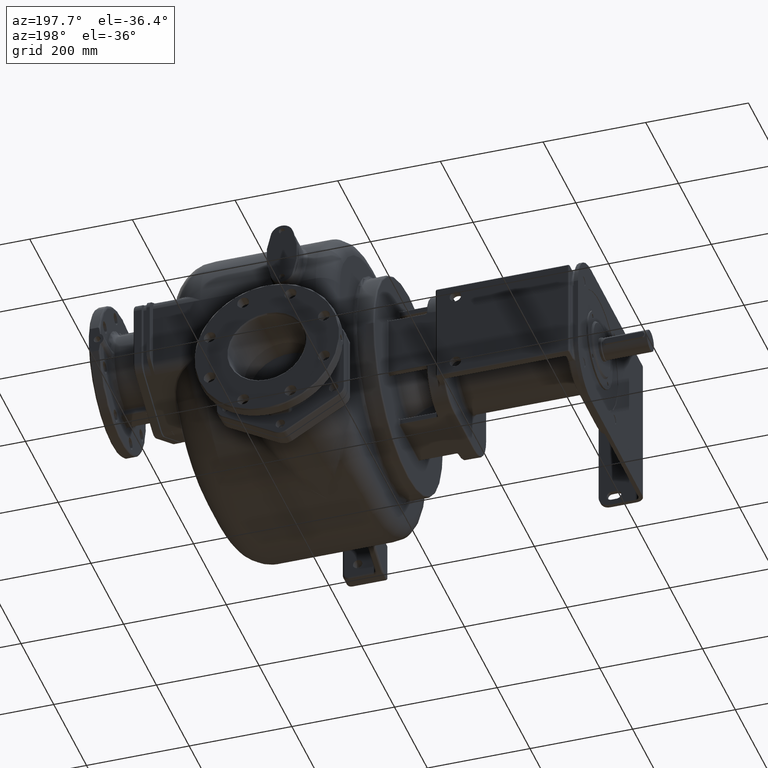
[diagram: clean part render]
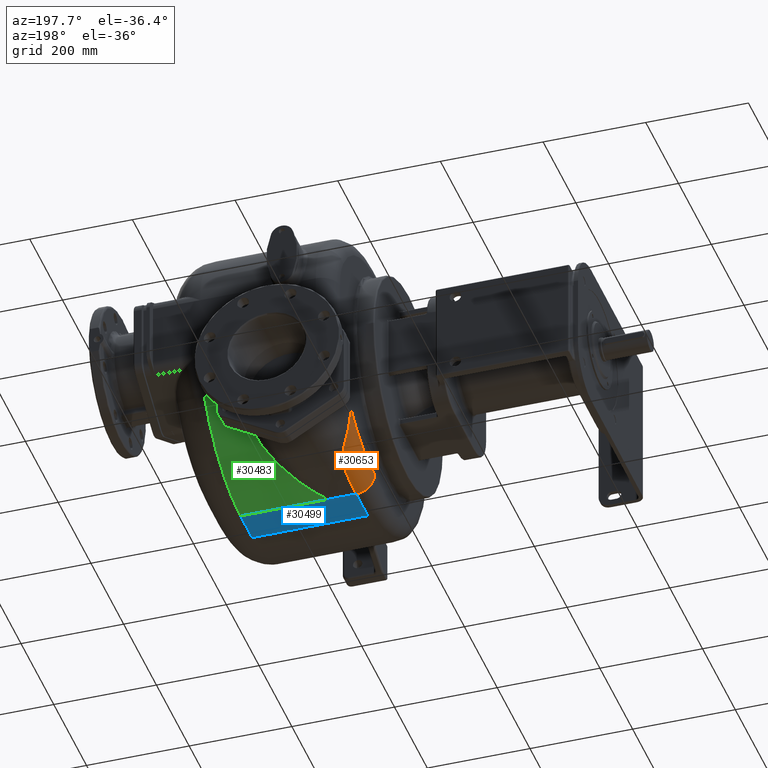
[diagram: same view with three faces highlighted in distinct colors, each labeled with its STEP entity id]
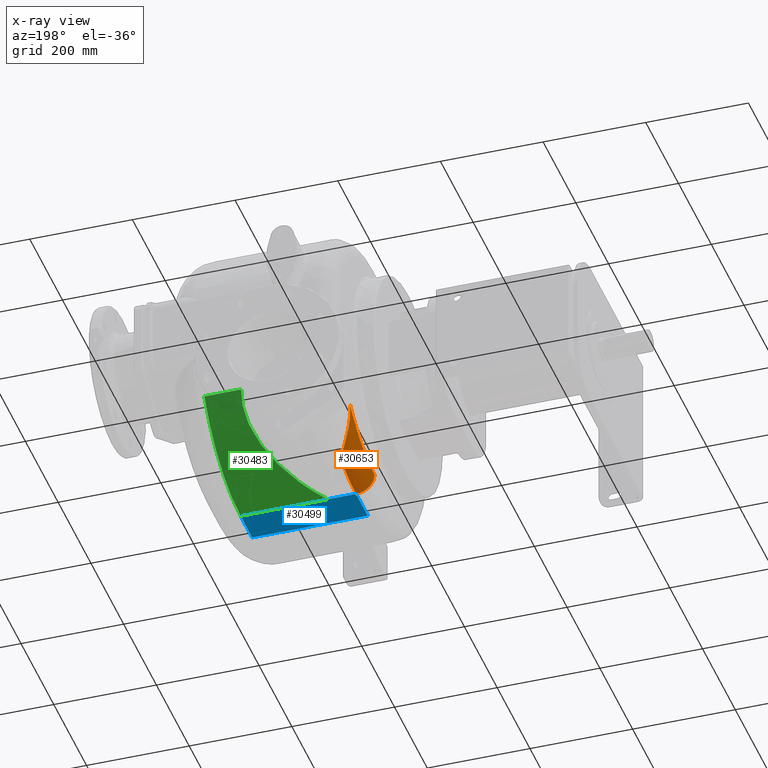
[diagram: x-ray of the same camera — body ghosted, the three highlighted faces saturated]
A machine part, auxiliary view with three faces highlighted in distinct colors.
The next image is the same camera in x-ray (body ghosted, the three faces saturated) — at least one of them is partly hidden behind the body in this view.
Their STEP definitions:

[orange] entity #30653 — the highlighted toroidal blend (fillet) surface has major radius 228 mm and minor (blend) radius 36 mm.
#5312=CARTESIAN_POINT('',(-1.41E2,3.64E2,-2.6E1));
#5313=DIRECTION('',(-1.E0,0.E0,0.E0));
#5314=DIRECTION('',(0.E0,6.513576430041E-1,-7.587708619209E-1));
#5315=AXIS2_PLACEMENT_3D('',#5312,#5313,#5314);
#5380=CARTESIAN_POINT('',(-1.409999997389E2,5.125093224940E2,
-1.990004784834E2));
#6318=CARTESIAN_POINT('',(-1.05E2,3.64E2,-2.6E1));
#6319=DIRECTION('',(-1.E0,0.E0,0.E0));
#6320=DIRECTION('',(0.E0,3.396494582290E-1,-9.405520961248E-1));
#6321=AXIS2_PLACEMENT_3D('',#6318,#6319,#6320);
#6328=CARTESIAN_POINT('',(-1.05E2,4.536674569725E2,-2.743057533769E2));
#6329=CARTESIAN_POINT('',(-1.052734222655E2,4.542726706393E2,
-2.740871988360E2));
#6330=CARTESIAN_POINT('',(-1.058228222480E2,4.554691231306E2,
-2.736435097828E2));
#6331=CARTESIAN_POINT('',(-1.066528021998E2,4.572212448947E2,
-2.729587356593E2));
#6332=CARTESIAN_POINT('',(-1.074882027050E2,4.589327721743E2,
-2.722542800049E2));
#6333=CARTESIAN_POINT('',(-1.083283246977E2,4.606049226158E2,
-2.715299282664E2));
#6334=CARTESIAN_POINT('',(-1.091727212466E2,4.622391317020E2,
-2.707853268266E2));
#6335=CARTESIAN_POINT('',(-1.100205109692E2,4.638363431053E2,
-2.700203255762E2));
#6336=CARTESIAN_POINT('',(-1.108707312704E2,4.653972732041E2,
-2.692348940007E2));
#6337=CARTESIAN_POINT('',(-1.117226417775E2,4.669228808616E2,
-2.684288756424E2));
#6338=CARTESIAN_POINT('',(-1.125757993013E2,4.684144812552E2,
-2.676018804972E2));
#6339=CARTESIAN_POINT('',(-1.134298075365E2,4.698733264060E2,
-2.667534714522E2));
#6340=CARTESIAN_POINT('',(-1.142836526568E2,4.712999816423E2,
-2.658836404204E2));
#6341=CARTESIAN_POINT('',(-1.151363632576E2,4.726949074685E2,
-2.649924531319E2));
#6342=CARTESIAN_POINT('',(-1.159870706515E2,4.740586519176E2,
-2.640799346090E2));
#6343=CARTESIAN_POINT('',(-1.168352654788E2,4.753922423922E2,
-2.631457677205E2));
#6344=CARTESIAN_POINT('',(-1.176805319736E2,4.766966395388E2,
-2.621895850531E2));
#6345=CARTESIAN_POINT('',(-1.185222346443E2,4.779726992356E2,
-2.612111140776E2));
#6346=CARTESIAN_POINT('',(-1.193593814173E2,4.792208182374E2,
-2.602104639332E2));
#6347=CARTESIAN_POINT('',(-1.201911034128E2,4.804414374778E2,
-2.591877039653E2));
#6348=CARTESIAN_POINT('',(-1.210165595274E2,4.816349907866E2,
-2.581429195175E2));
#6349=CARTESIAN_POINT('',(-1.218351373955E2,4.828021662930E2,
-2.570759547359E2));
#6350=CARTESIAN_POINT('',(-1.226462481121E2,4.839435976365E2,
-2.559866500729E2));
#6351=CARTESIAN_POINT('',(-1.234493451626E2,4.850599321111E2,
-2.548747875317E2));
#6352=CARTESIAN_POINT('',(-1.242435496608E2,4.861517051191E2,
-2.537404185223E2));
#6353=CARTESIAN_POINT('',(-1.250280572860E2,4.872193053493E2,
-2.525836525463E2));
#6354=CARTESIAN_POINT('',(-1.258020760989E2,4.882631449297E2,
-2.514045997810E2));
#6355=CARTESIAN_POINT('',(-1.265648555640E2,4.892836355514E2,
-2.502033608479E2));
#6356=CARTESIAN_POINT('',(-1.273157201917E2,4.902812446287E2,
-2.489799545461E2));
#6357=CARTESIAN_POINT('',(-1.280540079381E2,4.912564143135E2,
-2.477344040934E2));
#6358=CARTESIAN_POINT('',(-1.287790899945E2,4.922095607944E2,
-2.464667123778E2));
#6359=CARTESIAN_POINT('',(-1.294901878724E2,4.931412532045E2,
-2.451769472447E2));
#6360=CARTESIAN_POINT('',(-1.301866320367E2,4.940519220696E2,
-2.438651616274E2));
#6361=CARTESIAN_POINT('',(-1.308677438028E2,4.949420082774E2,
-2.425314156822E2));
#6362=CARTESIAN_POINT('',(-1.315328618140E2,4.958119419567E2,
-2.411757593580E2));
#6363=CARTESIAN_POINT('',(-1.321812612299E2,4.966620432324E2,
-2.397983975083E2));
#6364=CARTESIAN_POINT('',(-1.328122229146E2,4.974926286398E2,
-2.383995572777E2));
#6365=CARTESIAN_POINT('',(-1.334250684940E2,4.983039695291E2,
-2.369794574513E2));
#6366=CARTESIAN_POINT('',(-1.340190479949E2,4.990964890906E2,
-2.355383525710E2));
#6367=CARTESIAN_POINT('',(-1.345934826493E2,4.998705901733E2,
-2.340764337182E2));
#6368=CARTESIAN_POINT('',(-1.351477196934E2,5.006266281930E2,
-2.325938946597E2));
#6369=CARTESIAN_POINT('',(-1.356811040759E2,5.013649672087E2,
-2.310909417587E2));
#6370=CARTESIAN_POINT('',(-1.361929930811E2,5.020859699963E2,
-2.295677734776E2));
#6371=CARTESIAN_POINT('',(-1.366827543836E2,5.027900037656E2,
-2.280245732185E2));
#6372=CARTESIAN_POINT('',(-1.371497607093E2,5.034774165036E2,
-2.264615329047E2));
#6373=CARTESIAN_POINT('',(-1.375933844284E2,5.041485740344E2,
-2.248788301668E2));
#6374=CARTESIAN_POINT('',(-1.380129109933E2,5.048039342495E2,
-2.232768240302E2));
#6375=CARTESIAN_POINT('',(-1.384076949930E2,5.054437671572E2,
-2.216558810099E2));
#6376=CARTESIAN_POINT('',(-1.387770851603E2,5.060683913233E2,
-2.200163847506E2));
#6377=CARTESIAN_POINT('',(-1.391204435002E2,5.066781173319E2,
-2.183587309264E2));
#6378=CARTESIAN_POINT('',(-1.394371388440E2,5.072732511173E2,
-2.166833419573E2));
#6379=CARTESIAN_POINT('',(-1.397265505991E2,5.078541013506E2,
-2.149906538957E2));
#6380=CARTESIAN_POINT('',(-1.399880749492E2,5.084209450055E2,
-2.132810986341E2));
#6381=CARTESIAN_POINT('',(-1.402211006119E2,5.089741463536E2,
-2.115551461414E2));
#6382=CARTESIAN_POINT('',(-1.404250888979E2,5.095143150383E2,
-2.098126770278E2));
#6383=CARTESIAN_POINT('',(-1.405994854051E2,5.100419536885E2,
-2.080535530663E2));
#6384=CARTESIAN_POINT('',(-1.407436923242E2,5.105576002304E2,
-2.062776334169E2));
#6385=CARTESIAN_POINT('',(-1.408570904808E2,5.110617638592E2,
-2.044848891061E2));
#6386=CARTESIAN_POINT('',(-1.409389860434E2,5.115550465970E2,
-2.026749473718E2));
#6387=CARTESIAN_POINT('',(-1.409888096883E2,5.120377284637E2,
-2.008488178772E2));
#6388=CARTESIAN_POINT('',(-1.409998579061E2,5.123534509516E2,
-1.996179134369E2));
#6389=CARTESIAN_POINT('',(-1.41E2,5.125097965425E2,-1.989995385280E2));
#6391=CARTESIAN_POINT('',(-1.05E2,3.64E2,-2.54E2));
#6392=DIRECTION('',(0.E0,-1.E0,0.E0));
#6393=DIRECTION('',(-1.E0,0.E0,0.E0));
#6394=AXIS2_PLACEMENT_3D('',#6391,#6392,#6393);
#22153=CARTESIAN_POINT('',(-1.41E2,3.64E2,-2.54E2));
#22155=VERTEX_POINT('',#22153);
#22157=CARTESIAN_POINT('',(-1.05E2,3.639999999998E2,-2.9E2));
#22158=VERTEX_POINT('',#22157);
#22711=VERTEX_POINT('',#5380);
#22714=VERTEX_POINT('',#6328);
#30641=CARTESIAN_POINT('',(-1.05E2,3.64E2,-2.6E1));
#30642=DIRECTION('',(-1.E0,0.E0,0.E0));
#30643=DIRECTION('',(0.E0,8.407128129997E-1,-5.414812702745E-1));
#30644=AXIS2_PLACEMENT_3D('',#30641,#30642,#30643);
#30645=TOROIDAL_SURFACE('',#30644,2.28E2,3.6E1);
#30646=ORIENTED_EDGE('',*,*,#30634,.T.);
#30647=ORIENTED_EDGE('',*,*,#29916,.T.);
#30649=ORIENTED_EDGE('',*,*,#30648,.T.);
#30650=ORIENTED_EDGE('',*,*,#30507,.F.);
#30651=EDGE_LOOP('',(#30646,#30647,#30649,#30650));
#30652=FACE_OUTER_BOUND('',#30651,.F.);
#30653=ADVANCED_FACE('',(#30652),#30645,.T.);
#5316=CIRCLE('',#5315,2.28E2);
#6322=CIRCLE('',#6321,2.64E2);
#6390=B_SPLINE_CURVE_WITH_KNOTS('',3,(#6328,#6329,#6330,#6331,#6332,#6333,#6334,
#6335,#6336,#6337,#6338,#6339,#6340,#6341,#6342,#6343,#6344,#6345,#6346,#6347,
#6348,#6349,#6350,#6351,#6352,#6353,#6354,#6355,#6356,#6357,#6358,#6359,#6360,
#6361,#6362,#6363,#6364,#6365,#6366,#6367,#6368,#6369,#6370,#6371,#6372,#6373,
#6374,#6375,#6376,#6377,#6378,#6379,#6380,#6381,#6382,#6383,#6384,#6385,#6386,
#6387,#6388,#6389),.UNSPECIFIED.,.F.,.F.,(4,1,1,1,1,1,1,1,1,1,1,1,1,1,1,1,1,1,1,
1,1,1,1,1,1,1,1,1,1,1,1,1,1,1,1,1,1,1,1,1,1,1,1,1,1,1,1,1,1,1,1,1,1,1,1,1,1,1,1,
4),(0.E0,1.694915254237E-2,3.389830508475E-2,5.084745762712E-2,
6.779661016949E-2,8.474576271186E-2,1.016949152542E-1,1.186440677966E-1,
1.355932203390E-1,1.525423728814E-1,1.694915254237E-1,1.864406779661E-1,
2.033898305085E-1,2.203389830508E-1,2.372881355932E-1,2.542372881356E-1,
2.711864406780E-1,2.881355932203E-1,3.050847457627E-1,3.220338983051E-1,
3.389830508475E-1,3.559322033898E-1,3.728813559322E-1,3.898305084746E-1,
4.067796610169E-1,4.237288135593E-1,4.406779661017E-1,4.576271186441E-1,
4.745762711864E-1,4.915254237288E-1,5.084745762712E-1,5.254237288136E-1,
5.423728813559E-1,5.593220338983E-1,5.762711864407E-1,5.932203389831E-1,
6.101694915254E-1,6.271186440678E-1,6.440677966102E-1,6.610169491525E-1,
6.779661016949E-1,6.949152542373E-1,7.118644067797E-1,7.288135593220E-1,
7.457627118644E-1,7.627118644068E-1,7.796610169492E-1,7.966101694915E-1,
8.135593220339E-1,8.305084745763E-1,8.474576271186E-1,8.644067796610E-1,
8.813559322034E-1,8.983050847458E-1,9.152542372881E-1,9.322033898305E-1,
9.491525423729E-1,9.661016949153E-1,9.830508474576E-1,1.E0),.UNSPECIFIED.);
#6395=CIRCLE('',#6394,3.6E1);
#29916=EDGE_CURVE('',#22711,#22155,#5316,.T.);
#30507=EDGE_CURVE('',#22714,#22158,#6322,.T.);
#30634=EDGE_CURVE('',#22714,#22711,#6390,.T.);
#30648=EDGE_CURVE('',#22155,#22158,#6395,.T.);

[blue] entity #30499 — the highlighted planar face has unit normal (0, 0, -1).
#1092=DIRECTION('',(1.E0,-5.078012084899E-14,0.E0));
#1093=VECTOR('',#1092,2.25E2);
#1094=CARTESIAN_POINT('',(-1.05E2,2.93E2,-2.9E2));
#1095=LINE('',#1094,#1093);
#6265=CARTESIAN_POINT('',(-4.999992062201E1,3.640001280172E2,
-2.899999999845E2));
#6276=DIRECTION('',(9.999999999973E-1,2.327585822883E-6,2.817610519608E-10));
#6277=VECTOR('',#6276,5.500007937814E1);
#6278=CARTESIAN_POINT('',(-1.05E2,3.639999999998E2,-2.9E2));
#6279=LINE('',#6278,#6277);
#6280=DIRECTION('',(0.E0,-1.E0,0.E0));
#6281=VECTOR('',#6280,7.099999999980E1);
#6282=CARTESIAN_POINT('',(-1.05E2,3.639999999998E2,-2.9E2));
#6283=LINE('',#6282,#6281);
#6284=DIRECTION('',(0.E0,1.E0,0.E0));
#6285=VECTOR('',#6284,7.099999999970E1);
#6286=CARTESIAN_POINT('',(1.2E2,2.93E2,-2.9E2));
#6287=LINE('',#6286,#6285);
#6288=DIRECTION('',(9.999999999997E-1,-7.530445578940E-7,-9.115816152621E-11));
#6289=VECTOR('',#6288,1.699999206221E2);
#6290=CARTESIAN_POINT('',(-4.999992062201E1,3.640001280172E2,
-2.899999999845E2));
#6291=LINE('',#6290,#6289);
#22071=CARTESIAN_POINT('',(-1.05E2,2.93E2,-2.9E2));
#22072=CARTESIAN_POINT('',(1.2E2,2.93E2,-2.9E2));
#22073=VERTEX_POINT('',#22071);
#22074=VERTEX_POINT('',#22072);
#22157=CARTESIAN_POINT('',(-1.05E2,3.639999999998E2,-2.9E2));
#22158=VERTEX_POINT('',#22157);
#22171=CARTESIAN_POINT('',(1.2E2,3.64E2,-2.9E2));
#22173=VERTEX_POINT('',#22171);
#22709=VERTEX_POINT('',#6265);
#30484=CARTESIAN_POINT('',(-1.41E2,3.64E2,-2.9E2));
#30485=DIRECTION('',(0.E0,0.E0,-1.E0));
#30486=DIRECTION('',(0.E0,-1.E0,0.E0));
#30487=AXIS2_PLACEMENT_3D('',#30484,#30485,#30486);
#30488=PLANE('',#30487);
#30490=ORIENTED_EDGE('',*,*,#30489,.F.);
#30492=ORIENTED_EDGE('',*,*,#30491,.T.);
#30493=ORIENTED_EDGE('',*,*,#24969,.T.);
#30495=ORIENTED_EDGE('',*,*,#30494,.T.);
#30496=ORIENTED_EDGE('',*,*,#30475,.F.);
#30497=EDGE_LOOP('',(#30490,#30492,#30493,#30495,#30496));
#30498=FACE_OUTER_BOUND('',#30497,.F.);
#30499=ADVANCED_FACE('',(#30498),#30488,.T.);
#24969=EDGE_CURVE('',#22073,#22074,#1095,.T.);
#30475=EDGE_CURVE('',#22709,#22173,#6291,.T.);
#30489=EDGE_CURVE('',#22158,#22709,#6279,.T.);
#30491=EDGE_CURVE('',#22158,#22073,#6283,.T.);
#30494=EDGE_CURVE('',#22074,#22173,#6287,.T.);

[green] entity #30483 — the highlighted cylindrical surface (partial cylindrical patch) has radius 264 mm, axis along (-1, 0, 0).
#6183=CARTESIAN_POINT('',(4.823538765790E1,5.852213053263E2,-1.700733634983E2));
#6184=CARTESIAN_POINT('',(4.837653014021E1,5.848505811402E2,-1.706426004418E2));
#6185=CARTESIAN_POINT('',(4.864860464862E1,5.841000555191E2,-1.717854087262E2));
#6186=CARTESIAN_POINT('',(4.902570547037E1,5.829465394503E2,-1.735122648473E2));
#6187=CARTESIAN_POINT('',(4.937138843756E1,5.817648423874E2,-1.752513491010E2));
#6188=CARTESIAN_POINT('',(4.968523054913E1,5.805545166676E2,-1.770022179694E2));
#6189=CARTESIAN_POINT('',(4.996679093332E1,5.793151321816E2,-1.787643923914E2));
#6190=CARTESIAN_POINT('',(5.021560964620E1,5.780462798280E2,-1.805373521052E2));
#6191=CARTESIAN_POINT('',(5.043121832821E1,5.767475609817E2,-1.823205579954E2));
#6192=CARTESIAN_POINT('',(5.061327369694E1,5.754179899873E2,-1.841142485197E2));
#6193=CARTESIAN_POINT('',(5.076137445216E1,5.740565479697E2,-1.859186388251E2));
#6194=CARTESIAN_POINT('',(5.087505534730E1,5.726623501113E2,-1.877337052725E2));
#6195=CARTESIAN_POINT('',(5.095380020133E1,5.712348757968E2,-1.895589125700E2));
#6196=CARTESIAN_POINT('',(5.099710288675E1,5.697736112551E2,-1.913937037412E2));
#6197=CARTESIAN_POINT('',(5.100444675116E1,5.682778571736E2,-1.932377331864E2));
#6198=CARTESIAN_POINT('',(5.097529335183E1,5.667467994755E2,-1.950907596336E2));
#6199=CARTESIAN_POINT('',(5.090909200398E1,5.651796807780E2,-1.969524327066E2));
#6200=CARTESIAN_POINT('',(5.080528637720E1,5.635758225203E2,-1.988222748137E2));
#6201=CARTESIAN_POINT('',(5.066333204915E1,5.619346099710E2,-2.006997089579E2));
#6202=CARTESIAN_POINT('',(5.048263228427E1,5.602551881595E2,-2.025844035970E2));
#6203=CARTESIAN_POINT('',(5.026254884351E1,5.585365558696E2,-2.044761413718E2));
#6204=CARTESIAN_POINT('',(5.000245406530E1,5.567778584723E2,-2.063744915981E2));
#6205=CARTESIAN_POINT('',(4.970176342211E1,5.549784635422E2,-2.082787497160E2));
#6206=CARTESIAN_POINT('',(4.935989970598E1,5.531377070947E2,-2.101882229744E2));
#6207=CARTESIAN_POINT('',(4.897617721017E1,5.512546872535E2,-2.121024319760E2));
#6208=CARTESIAN_POINT('',(4.854992916023E1,5.493285312885E2,-2.140208216188E2));
#6209=CARTESIAN_POINT('',(4.808053656611E1,5.473585330004E2,-2.159426335256E2));
#6210=CARTESIAN_POINT('',(4.756744481965E1,5.453440681255E2,-2.178670051458E2));
#6211=CARTESIAN_POINT('',(4.700997032654E1,5.432842808150E2,-2.197932669273E2));
#6212=CARTESIAN_POINT('',(4.640739281052E1,5.411782229272E2,-2.217207900919E2));
#6213=CARTESIAN_POINT('',(4.575907135232E1,5.390251312334E2,-2.236487328356E2));
#6214=CARTESIAN_POINT('',(4.506447987575E1,5.368244592743E2,-2.255760334763E2));
#6215=CARTESIAN_POINT('',(4.432307028151E1,5.345755709283E2,-2.275016915965E2));
#6216=CARTESIAN_POINT('',(4.353411798442E1,5.322775898190E2,-2.294248806728E2));
#6217=CARTESIAN_POINT('',(4.269696598827E1,5.299296838678E2,-2.313446930102E2));
#6218=CARTESIAN_POINT('',(4.181108675673E1,5.275312937794E2,-2.332599656396E2));
#6219=CARTESIAN_POINT('',(4.087607973417E1,5.250819595746E2,-2.351694413556E2));
#6220=CARTESIAN_POINT('',(3.989141091398E1,5.225810735115E2,-2.370719617377E2));
#6221=CARTESIAN_POINT('',(3.885645538622E1,5.200279245197E2,-2.389664183046E2));
#6222=CARTESIAN_POINT('',(3.777069847115E1,5.174218869095E2,-2.408516067195E2));
#6223=CARTESIAN_POINT('',(3.663378767400E1,5.147626039252E2,-2.427261081376E2));
#6224=CARTESIAN_POINT('',(3.544549331854E1,5.120497473434E2,-2.445884770596E2));
#6225=CARTESIAN_POINT('',(3.420541652288E1,5.092829088531E2,-2.464373126735E2));
#6226=CARTESIAN_POINT('',(3.291314225677E1,5.064616574628E2,-2.482712131049E2));
#6227=CARTESIAN_POINT('',(3.156838279085E1,5.035856463684E2,-2.500887048410E2));
#6228=CARTESIAN_POINT('',(3.017102472617E1,5.006547611733E2,-2.518881609987E2));
#6229=CARTESIAN_POINT('',(2.872107979150E1,4.976688852226E2,-2.536679586327E2));
#6230=CARTESIAN_POINT('',(2.721844092969E1,4.946279686857E2,-2.554264363124E2));
#6231=CARTESIAN_POINT('',(2.566301784879E1,4.915319967891E2,-2.571619167613E2));
#6232=CARTESIAN_POINT('',(2.405484760619E1,4.883809984427E2,-2.588727021067E2));
#6233=CARTESIAN_POINT('',(2.239414526181E1,4.851752060114E2,-2.605569946691E2));
#6234=CARTESIAN_POINT('',(2.068125655547E1,4.819148371071E2,-2.622130216077E2));
#6235=CARTESIAN_POINT('',(1.891650639760E1,4.786002635134E2,-2.638389488325E2));
#6236=CARTESIAN_POINT('',(1.710022111552E1,4.752319853045E2,-2.654329061056E2));
#6237=CARTESIAN_POINT('',(1.523285226184E1,4.718105002174E2,-2.669930532085E2));
#6238=CARTESIAN_POINT('',(1.331499143887E1,4.683364145033E2,-2.685175296053E2));
#6239=CARTESIAN_POINT('',(1.134734997610E1,4.648103477709E2,-2.700045014921E2));
#6240=CARTESIAN_POINT('',(9.330731868750E0,4.612330039710E2,-2.714521298942E2));
#6241=CARTESIAN_POINT('',(7.265974488035E0,4.576054710751E2,-2.728584642650E2));
#6242=CARTESIAN_POINT('',(5.154018924511E0,4.539288076664E2,-2.742216230650E2));
#6243=CARTESIAN_POINT('',(2.995947677943E0,4.502041685079E2,-2.755397423769E2));
#6244=CARTESIAN_POINT('',(7.930278186939E-1,4.464328796161E2,
-2.768109591628E2));
#6245=CARTESIAN_POINT('',(-1.453371626621E0,4.426162231295E2,
-2.780334889951E2));
#6246=CARTESIAN_POINT('',(-3.741843131217E0,4.387556936491E2,
-2.792055430503E2));
#6247=CARTESIAN_POINT('',(-6.070943302310E0,4.348529617316E2,
-2.803253557672E2));
#6248=CARTESIAN_POINT('',(-8.439123250232E0,4.309096780858E2,
-2.813912474508E2));
#6249=CARTESIAN_POINT('',(-1.084473536845E1,4.269275355508E2,
-2.824016038126E2));
#6250=CARTESIAN_POINT('',(-1.328602865391E1,4.229082788099E2,
-2.833548763455E2));
#6251=CARTESIAN_POINT('',(-1.576119547687E1,4.188535835641E2,
-2.842496077598E2));
#6252=CARTESIAN_POINT('',(-1.826824726345E1,4.147655316193E2,
-2.850843302850E2));
#6253=CARTESIAN_POINT('',(-2.080504345658E1,4.106465353157E2,
-2.858576145635E2));
#6254=CARTESIAN_POINT('',(-2.336939257573E1,4.064989440821E2,
-2.865681573575E2));
#6255=CARTESIAN_POINT('',(-2.595901720532E1,4.023251638059E2,
-2.872147551872E2));
#6256=CARTESIAN_POINT('',(-2.857154272889E1,3.981276704405E2,
-2.877963064762E2));
#6257=CARTESIAN_POINT('',(-3.120454777032E1,3.939089394091E2,
-2.883118234807E2));
#6258=CARTESIAN_POINT('',(-3.385556381069E1,3.896714696748E2,
-2.887604272577E2));
#6259=CARTESIAN_POINT('',(-3.652213482180E1,3.854178921588E2,
-2.891413406411E2));
#6260=CARTESIAN_POINT('',(-3.920175685737E1,3.811508348151E2,
-2.894539049325E2));
#6261=CARTESIAN_POINT('',(-4.189190291727E1,3.768729149873E2,
-2.896975858961E2));
#6262=CARTESIAN_POINT('',(-4.458997846240E1,3.725868115267E2,
-2.898719400893E2));
#6263=CARTESIAN_POINT('',(-4.729352701367E1,3.682949988083E2,
-2.899767390367E2));
#6264=CARTESIAN_POINT('',(-4.909751298174E1,3.654321693384E2,
-2.899999158686E2));
#6265=CARTESIAN_POINT('',(-4.999992062201E1,3.640001280172E2,
-2.899999999845E2));
#6267=CARTESIAN_POINT('',(1.2E2,3.64E2,-2.6E1));
#6268=DIRECTION('',(1.E0,0.E0,0.E0));
#6269=DIRECTION('',(0.E0,0.E0,-1.E0));
#6270=AXIS2_PLACEMENT_3D('',#6267,#6268,#6269);
#6272=DIRECTION('',(1.E0,-8.874480668557E-12,-1.362974170869E-11));
#6273=VECTOR('',#6272,7.176461234210E1);
#6274=CARTESIAN_POINT('',(4.823538765790E1,5.852213053263E2,-1.700733634983E2));
#6275=LINE('',#6274,#6273);
#6288=DIRECTION('',(9.999999999997E-1,-7.530445578940E-7,-9.115816152621E-11));
#6289=VECTOR('',#6288,1.699999206221E2);
#6290=CARTESIAN_POINT('',(-4.999992062201E1,3.640001280172E2,
-2.899999999845E2));
#6291=LINE('',#6290,#6289);
#22171=CARTESIAN_POINT('',(1.2E2,3.64E2,-2.9E2));
#22172=CARTESIAN_POINT('',(1.2E2,5.852213053263E2,-1.700733634983E2));
#22173=VERTEX_POINT('',#22171);
#22174=VERTEX_POINT('',#22172);
#22708=VERTEX_POINT('',#6183);
#22709=VERTEX_POINT('',#6265);
#30469=CARTESIAN_POINT('',(-1.41E2,3.64E2,-2.6E1));
#30470=DIRECTION('',(-1.E0,0.E0,0.E0));
#30471=DIRECTION('',(0.E0,0.E0,1.E0));
#30472=AXIS2_PLACEMENT_3D('',#30469,#30470,#30471);
#30473=CYLINDRICAL_SURFACE('',#30472,2.64E2);
#30474=ORIENTED_EDGE('',*,*,#30462,.T.);
#30476=ORIENTED_EDGE('',*,*,#30475,.T.);
#30478=ORIENTED_EDGE('',*,*,#30477,.T.);
#30480=ORIENTED_EDGE('',*,*,#30479,.F.);
#30481=EDGE_LOOP('',(#30474,#30476,#30478,#30480));
#30482=FACE_OUTER_BOUND('',#30481,.F.);
#30483=ADVANCED_FACE('',(#30482),#30473,.T.);
#6266=B_SPLINE_CURVE_WITH_KNOTS('',3,(#6183,#6184,#6185,#6186,#6187,#6188,#6189,
#6190,#6191,#6192,#6193,#6194,#6195,#6196,#6197,#6198,#6199,#6200,#6201,#6202,
#6203,#6204,#6205,#6206,#6207,#6208,#6209,#6210,#6211,#6212,#6213,#6214,#6215,
#6216,#6217,#6218,#6219,#6220,#6221,#6222,#6223,#6224,#6225,#6226,#6227,#6228,
#6229,#6230,#6231,#6232,#6233,#6234,#6235,#6236,#6237,#6238,#6239,#6240,#6241,
#6242,#6243,#6244,#6245,#6246,#6247,#6248,#6249,#6250,#6251,#6252,#6253,#6254,
#6255,#6256,#6257,#6258,#6259,#6260,#6261,#6262,#6263,#6264,#6265),
.UNSPECIFIED.,.F.,.F.,(4,1,1,1,1,1,1,1,1,1,1,1,1,1,1,1,1,1,1,1,1,1,1,1,1,1,1,1,
1,1,1,1,1,1,1,1,1,1,1,1,1,1,1,1,1,1,1,1,1,1,1,1,1,1,1,1,1,1,1,1,1,1,1,1,1,1,1,1,
1,1,1,1,1,1,1,1,1,1,1,1,4),(0.E0,1.25E-2,2.5E-2,3.75E-2,5.E-2,6.25E-2,7.5E-2,
8.75E-2,1.E-1,1.125E-1,1.25E-1,1.375E-1,1.5E-1,1.625E-1,1.75E-1,1.875E-1,2.E-1,
2.125E-1,2.25E-1,2.375E-1,2.5E-1,2.625E-1,2.75E-1,2.875E-1,3.E-1,3.125E-1,
3.25E-1,3.375E-1,3.5E-1,3.625E-1,3.75E-1,3.875E-1,4.E-1,4.125E-1,4.25E-1,
4.375E-1,4.5E-1,4.625E-1,4.75E-1,4.875E-1,5.E-1,5.125E-1,5.25E-1,5.375E-1,
5.5E-1,5.625E-1,5.75E-1,5.875E-1,6.E-1,6.125E-1,6.25E-1,6.375E-1,6.5E-1,
6.625E-1,6.75E-1,6.875E-1,7.E-1,7.125E-1,7.25E-1,7.375E-1,7.5E-1,7.625E-1,
7.75E-1,7.875E-1,8.E-1,8.125E-1,8.25E-1,8.375E-1,8.5E-1,8.625E-1,8.75E-1,
8.875E-1,9.E-1,9.125E-1,9.25E-1,9.375E-1,9.5E-1,9.625E-1,9.75E-1,9.875E-1,1.E0),
.UNSPECIFIED.);
#6271=CIRCLE('',#6270,2.64E2);
#30462=EDGE_CURVE('',#22708,#22709,#6266,.T.);
#30475=EDGE_CURVE('',#22709,#22173,#6291,.T.);
#30477=EDGE_CURVE('',#22173,#22174,#6271,.T.);
#30479=EDGE_CURVE('',#22708,#22174,#6275,.T.);